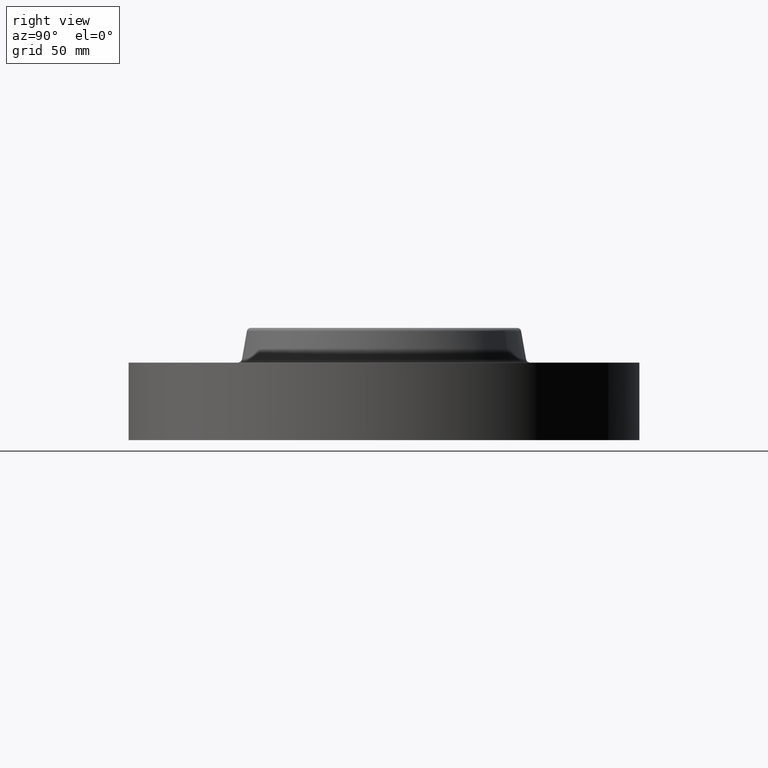
[diagram: clean part render]
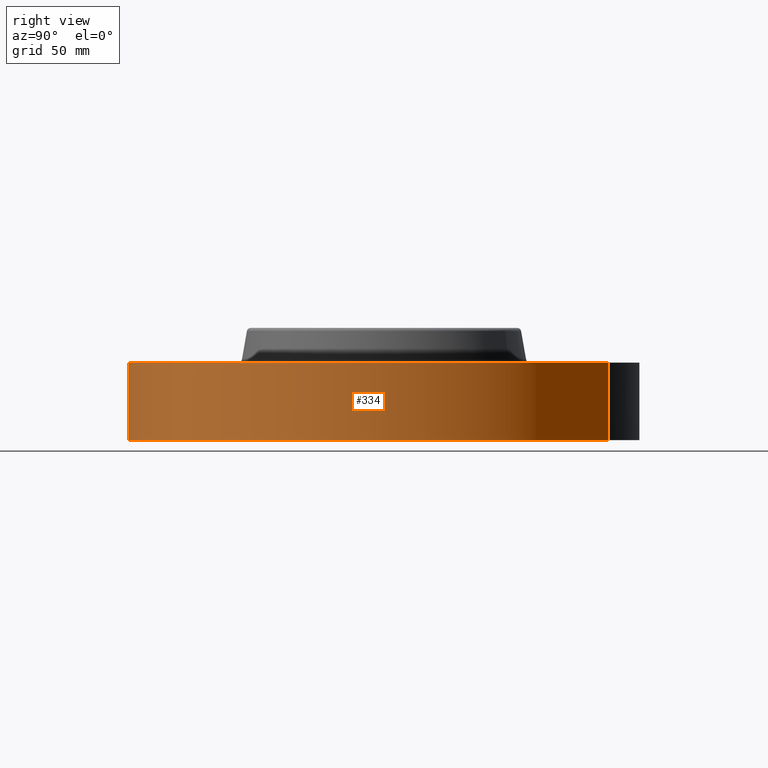
[diagram: same view with one face highlighted and labeled with its STEP entity id]
A machine part, right view. The second image highlights one B-rep face of the part: STEP entity #334.
In plain terms, the highlighted cylindrical surface (partial cylindrical patch) has radius 104.775 mm, axis along (0, 0, -1).
Its self-contained STEP definition (entity closure, byte-faithful):
#136=AXIS2_PLACEMENT_3D('Circle Axis2P3D',#134,#135,$) ;
#295=AXIS2_PLACEMENT_3D('Cylinder Axis2P3D',#292,#293,#294) ;
#325=AXIS2_PLACEMENT_3D('Circle Axis2P3D',#323,#324,$) ;
#129=CARTESIAN_POINT('Vertex',(-1.97763034675,-3.62002806781,5.59482469102E-016)) ;
#131=CARTESIAN_POINT('Vertex',(1.97763034675,3.62002806781,5.59482469102E-016)) ;
#134=CARTESIAN_POINT('Axis2P3D Location',(0.,0.,0.)) ;
#292=CARTESIAN_POINT('Axis2P3D Location',(0.,0.,0.905000000004)) ;
#297=CARTESIAN_POINT('Line Origine',(-1.97763034675,-3.62002806781,0.625000000003)) ;
#301=CARTESIAN_POINT('Vertex',(-1.97763034675,-3.62002806781,1.25000000001)) ;
#308=CARTESIAN_POINT('Vertex',(1.97763034675,3.62002806781,1.25000000001)) ;
#311=CARTESIAN_POINT('Line Origine',(1.97763034675,3.62002806781,0.625000000003)) ;
#323=CARTESIAN_POINT('Axis2P3D Location',(0.,0.,1.25000000001)) ;
#135=DIRECTION('Axis2P3D Direction',(0.,0.,-0.0393700787402)) ;
#293=DIRECTION('Axis2P3D Direction',(0.,0.,-0.0393700787402)) ;
#294=DIRECTION('Axis2P3D XDirection',(0.0188750212049,0.0345504945626,0.)) ;
#298=DIRECTION('Vector Direction',(0.,0.,-0.0393700787402)) ;
#312=DIRECTION('Vector Direction',(0.,0.,-0.0393700787402)) ;
#324=DIRECTION('Axis2P3D Direction',(0.,0.,-0.0393700787402)) ;
#299=VECTOR('Line Direction',#298,0.0393700787402) ;
#313=VECTOR('Line Direction',#312,0.0393700787402) ;
#329=ORIENTED_EDGE('',*,*,#138,.F.) ;
#330=ORIENTED_EDGE('',*,*,#315,.T.) ;
#331=ORIENTED_EDGE('',*,*,#327,.T.) ;
#332=ORIENTED_EDGE('',*,*,#303,.F.) ;
#334=ADVANCED_FACE('PartBody',(#333),#296,.T.) ;
#137=CIRCLE('generated circle',#136,4.12500000002) ;
#326=CIRCLE('generated circle',#325,4.12500000002) ;
#296=CYLINDRICAL_SURFACE('generated cylinder',#295,4.12500000002) ;
#138=EDGE_CURVE('',#132,#130,#137,.T.) ;
#303=EDGE_CURVE('',#130,#302,#300,.F.) ;
#315=EDGE_CURVE('',#132,#309,#314,.F.) ;
#327=EDGE_CURVE('',#309,#302,#326,.T.) ;
#328=EDGE_LOOP('',(#329,#330,#331,#332)) ;
#333=FACE_OUTER_BOUND('',#328,.T.) ;
#300=LINE('Line',#297,#299) ;
#314=LINE('Line',#311,#313) ;
#130=VERTEX_POINT('',#129) ;
#132=VERTEX_POINT('',#131) ;
#302=VERTEX_POINT('',#301) ;
#309=VERTEX_POINT('',#308) ;